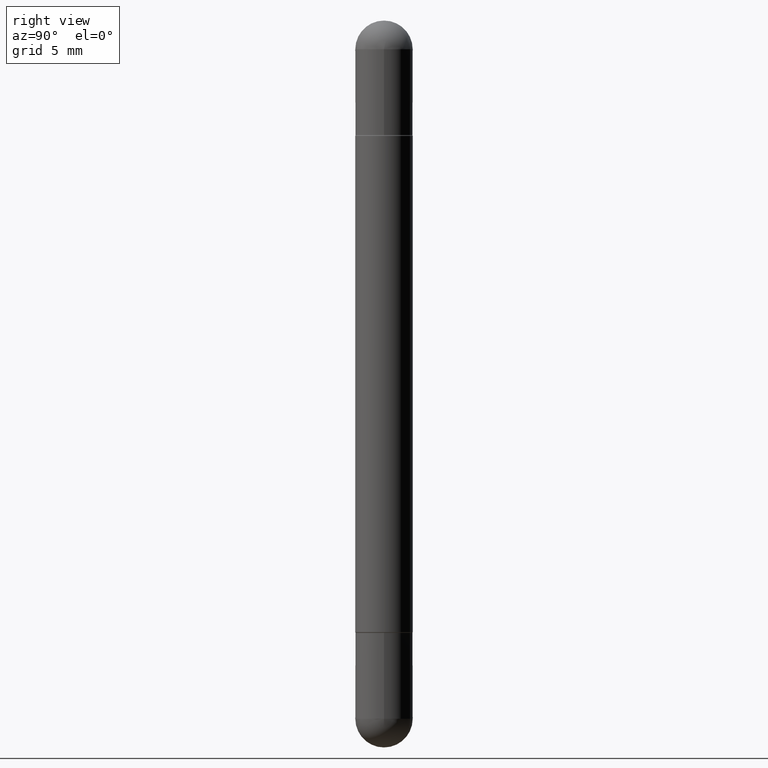
[diagram: clean part render]
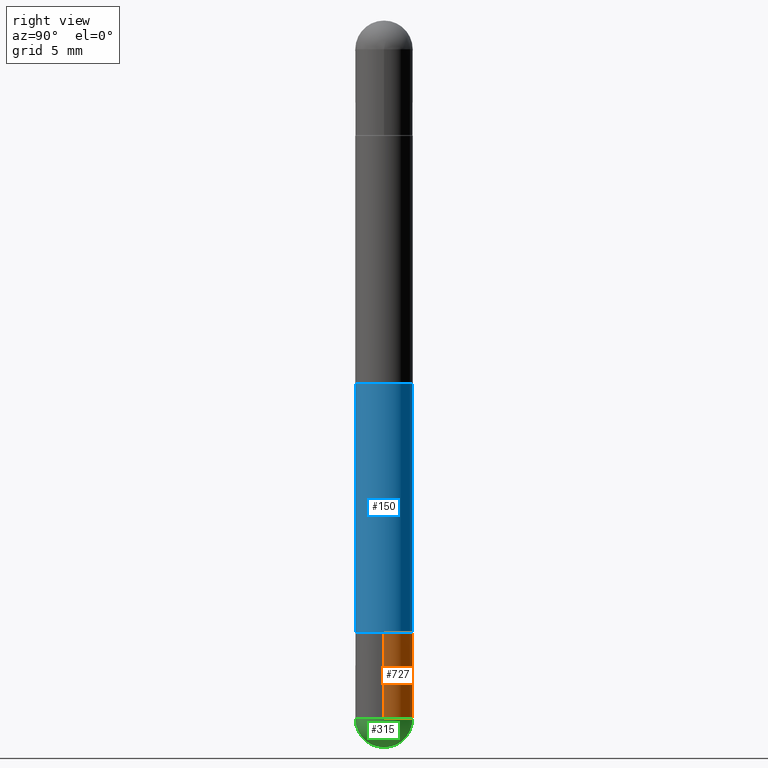
[diagram: same view with three faces highlighted in distinct colors, each labeled with its STEP entity id]
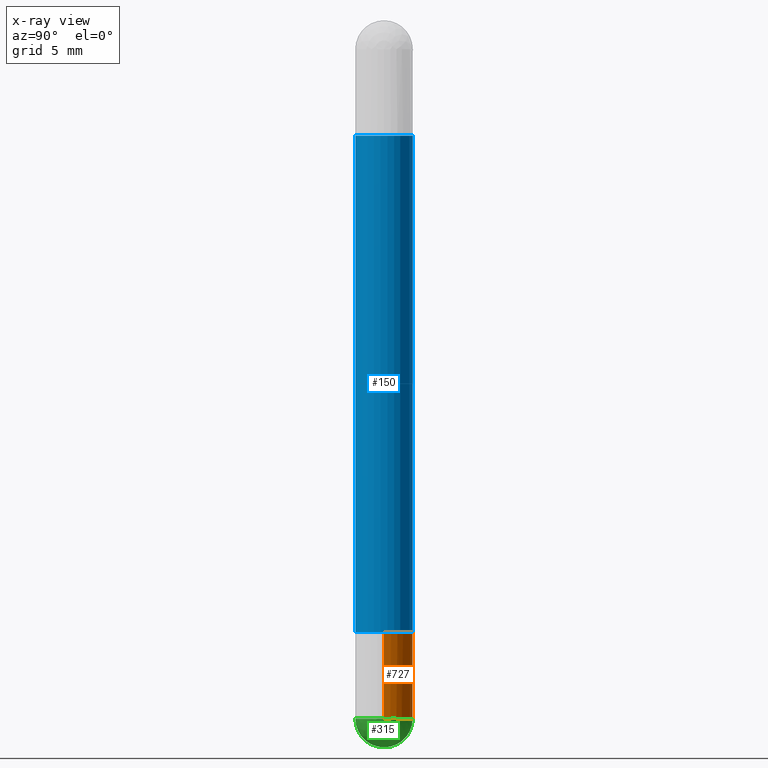
[diagram: x-ray of the same camera — body ghosted, the three highlighted faces saturated]
A machine part, right view with three faces highlighted in distinct colors.
The next image is the same camera in x-ray (body ghosted, the three faces saturated) — at least one of them is partly hidden behind the body in this view.
Their STEP definitions:

[orange] entity #727 — the highlighted cylindrical surface (edge-blend (fillet) strip) has radius 1.4999 mm, axis along (-0, 0, 1).
#76 = EDGE_CURVE ( 'NONE', #181, #323, #173, .T. ) ;
#83 = EDGE_CURVE ( 'NONE', #181, #246, #277, .T. ) ;
#84 = AXIS2_PLACEMENT_3D ( 'NONE', #748, #310, #359 ) ;
#107 = VECTOR ( 'NONE', #483, 39.37007874015748143 ) ;
#126 = EDGE_LOOP ( 'NONE', ( #201, #782, #632, #763, #146 ) ) ;
#146 = ORIENTED_EDGE ( 'NONE', *, *, #83, .T. ) ;
#153 = AXIS2_PLACEMENT_3D ( 'NONE', #493, #306, #770 ) ;
#160 = AXIS2_PLACEMENT_3D ( 'NONE', #605, #739, #685 ) ;
#173 = LINE ( 'NONE', #667, #107 ) ;
#181 = VERTEX_POINT ( 'NONE', #538 ) ;
#201 = ORIENTED_EDGE ( 'NONE', *, *, #696, .T. ) ;
#223 = DIRECTION ( 'NONE',  ( -2.445468806185136597E-29, 3.491481338843145583E-15, 1.000000000000000000 ) ) ;
#246 = VERTEX_POINT ( 'NONE', #407 ) ;
#260 = VERTEX_POINT ( 'NONE', #279 ) ;
#277 = CIRCLE ( 'NONE', #791, 0.05905000000000001914 ) ;
#279 = CARTESIAN_POINT ( 'NONE',  ( -0.05905000000000001914, -4.288599812930171320E-15, -1.259899999999999798 ) ) ;
#306 = DIRECTION ( 'NONE',  ( -2.445468806185136597E-29, 3.491481338843145583E-15, 1.000000000000000000 ) ) ;
#310 = DIRECTION ( 'NONE',  ( -2.445468806185136597E-29, 3.491481338843145583E-15, 1.000000000000000000 ) ) ;
#312 = CIRCLE ( 'NONE', #84, 0.05905000000000001914 ) ;
#323 = VERTEX_POINT ( 'NONE', #529 ) ;
#359 = DIRECTION ( 'NONE',  ( 1.000000000000000000, -6.982962677686270655E-15, 0.000000000000000000 ) ) ;
#367 = EDGE_CURVE ( 'NONE', #553, #260, #476, .T. ) ;
#403 = EDGE_CURVE ( 'NONE', #323, #260, #508, .T. ) ;
#407 = CARTESIAN_POINT ( 'NONE',  ( 4.123439461174084467E-16, 0.05904999999999487742, -1.437050000000000161 ) ) ;
#476 = LINE ( 'NONE', #552, #651 ) ;
#483 = DIRECTION ( 'NONE',  ( -2.445468806185136877E-29, 3.491481338843145188E-15, 1.000000000000000000 ) ) ;
#493 = CARTESIAN_POINT ( 'NONE',  ( 0.000000000000000000, 0.000000000000000000, 0.000000000000000000 ) ) ;
#508 = CIRCLE ( 'NONE', #160, 0.05905000000000001914 ) ;
#529 = CARTESIAN_POINT ( 'NONE',  ( 0.05905000000000001914, -4.811261284925853162E-15, -1.259899999999999798 ) ) ;
#538 = CARTESIAN_POINT ( 'NONE',  ( 0.05905000000000001914, -5.120519244513884944E-15, -1.437049999999999939 ) ) ;
#552 = CARTESIAN_POINT ( 'NONE',  ( -0.05905000000000001914, 4.195754854663392958E-16, -2.904631170795522943E-30 ) ) ;
#553 = VERTEX_POINT ( 'NONE', #600 ) ;
#593 = FACE_OUTER_BOUND ( 'NONE', #126, .T. ) ;
#600 = CARTESIAN_POINT ( 'NONE',  ( -0.05905000000000001914, -4.288599812930171320E-15, -1.437049999999999939 ) ) ;
#605 = CARTESIAN_POINT ( 'NONE',  ( 3.081046148912652946E-29, -4.398917338808479031E-15, -1.259899999999999798 ) ) ;
#632 = ORIENTED_EDGE ( 'NONE', *, *, #403, .F. ) ;
#651 = VECTOR ( 'NONE', #669, 39.37007874015748143 ) ;
#667 = CARTESIAN_POINT ( 'NONE',  ( 0.05905000000000001914, -4.123439461173741806E-16, 2.879382386107500921E-30 ) ) ;
#669 = DIRECTION ( 'NONE',  ( -2.445468806185136877E-29, 3.491481338843145188E-15, 1.000000000000000000 ) ) ;
#676 = CYLINDRICAL_SURFACE ( 'NONE', #153, 0.05905000000000001914 ) ;
#685 = DIRECTION ( 'NONE',  ( 1.000000000000000000, -6.982962677686270655E-15, 0.000000000000000000 ) ) ;
#696 = EDGE_CURVE ( 'NONE', #246, #553, #312, .T. ) ;
#727 = ADVANCED_FACE ( 'NONE', ( #593 ), #676, .T. ) ;
#739 = DIRECTION ( 'NONE',  ( -2.445468806185136597E-29, 3.491481338843145583E-15, 1.000000000000000000 ) ) ;
#748 = CARTESIAN_POINT ( 'NONE',  ( 3.514260947928350449E-29, -5.017433257984542594E-15, -1.437049999999999939 ) ) ;
#763 = ORIENTED_EDGE ( 'NONE', *, *, #76, .F. ) ;
#770 = DIRECTION ( 'NONE',  ( 1.000000000000000000, -6.982962677686266711E-15, 4.876176775795935793E-29 ) ) ;
#782 = ORIENTED_EDGE ( 'NONE', *, *, #367, .T. ) ;
#789 = CARTESIAN_POINT ( 'NONE',  ( 3.514260947928350449E-29, -5.017433257984542594E-15, -1.437049999999999939 ) ) ;
#791 = AXIS2_PLACEMENT_3D ( 'NONE', #789, #223, #803 ) ;
#803 = DIRECTION ( 'NONE',  ( 1.000000000000000000, -6.982962677686270655E-15, 0.000000000000000000 ) ) ;

[blue] entity #150 — the highlighted cylindrical surface (edge-blend (fillet) strip) has radius 1.4999 mm, axis along (-0, 0, -1).
#14 = CARTESIAN_POINT ( 'NONE',  ( 4.051124067684279981E-16, 0.05904999999999575866, -1.258900000000000352 ) ) ;
#27 = CARTESIAN_POINT ( 'NONE',  ( 0.000000000000000000, 0.000000000000000000, -1.496100000000000207 ) ) ;
#29 = ORIENTED_EDGE ( 'NONE', *, *, #263, .F. ) ;
#32 = DIRECTION ( 'NONE',  ( -6.982962677686265922E-15, -1.000000000000000000, -4.626330217890363025E-15 ) ) ;
#52 = VERTEX_POINT ( 'NONE', #14 ) ;
#56 = VECTOR ( 'NONE', #714, 39.37007874015748143 ) ;
#65 = CIRCLE ( 'NONE', #242, 0.05905000000000014404 ) ;
#115 = LINE ( 'NONE', #617, #728 ) ;
#119 = ORIENTED_EDGE ( 'NONE', *, *, #217, .T. ) ;
#145 = LINE ( 'NONE', #399, #56 ) ;
#150 = ADVANCED_FACE ( 'NONE', ( #609 ), #724, .T. ) ;
#203 = CIRCLE ( 'NONE', #662, 0.05905000000000014404 ) ;
#207 = DIRECTION ( 'NONE',  ( 2.449736537588635656E-29, -3.485369704569148359E-15, 1.000000000000000000 ) ) ;
#217 = EDGE_CURVE ( 'NONE', #431, #52, #65, .T. ) ;
#219 = DIRECTION ( 'NONE',  ( -2.449736537588635656E-29, 3.485369704569148359E-15, 1.000000000000000000 ) ) ;
#226 = DIRECTION ( 'NONE',  ( -2.449736537588635656E-29, 3.485369704569148359E-15, -1.000000000000000000 ) ) ;
#242 = AXIS2_PLACEMENT_3D ( 'NONE', #269, #219, #402 ) ;
#263 = EDGE_CURVE ( 'NONE', #700, #439, #203, .T. ) ;
#269 = CARTESIAN_POINT ( 'NONE',  ( 3.083973327170334045E-29, -4.387731921082100675E-15, -1.258900000000000130 ) ) ;
#297 = CARTESIAN_POINT ( 'NONE',  ( -4.123439461173441546E-16, -0.05905000000000452248, -0.2372000000000003272 ) ) ;
#354 = DIRECTION ( 'NONE',  ( -2.449736537588635656E-29, 3.485369704569147964E-15, -1.000000000000000000 ) ) ;
#393 = AXIS2_PLACEMENT_3D ( 'NONE', #27, #226, #32 ) ;
#399 = CARTESIAN_POINT ( 'NONE',  ( -4.123439461173745750E-16, -0.05905000000000008159, -1.496100000000000430 ) ) ;
#402 = DIRECTION ( 'NONE',  ( -6.982962677686265922E-15, -1.000000000000000000, 4.626330217890358292E-15 ) ) ;
#409 = EDGE_CURVE ( 'NONE', #439, #52, #115, .T. ) ;
#431 = VERTEX_POINT ( 'NONE', #616 ) ;
#439 = VERTEX_POINT ( 'NONE', #447 ) ;
#442 = ORIENTED_EDGE ( 'NONE', *, *, #613, .T. ) ;
#447 = CARTESIAN_POINT ( 'NONE',  ( 4.051124067684407678E-16, 0.05904999999999576560, -0.2371999999999999387 ) ) ;
#460 = DIRECTION ( 'NONE',  ( -6.982962677686265922E-15, -1.000000000000000000, -3.469747663417768719E-15 ) ) ;
#506 = EDGE_LOOP ( 'NONE', ( #523, #29, #442, #119 ) ) ;
#520 = CARTESIAN_POINT ( 'NONE',  ( 3.083973327170334045E-29, -4.387731921082100675E-15, -0.2372000000000001330 ) ) ;
#523 = ORIENTED_EDGE ( 'NONE', *, *, #409, .F. ) ;
#609 = FACE_OUTER_BOUND ( 'NONE', #506, .T. ) ;
#613 = EDGE_CURVE ( 'NONE', #700, #431, #145, .T. ) ;
#616 = CARTESIAN_POINT ( 'NONE',  ( -4.123439461173442039E-16, -0.05905000000000452942, -1.258899999999999686 ) ) ;
#617 = CARTESIAN_POINT ( 'NONE',  ( 4.051124067684094599E-16, 0.05905000000000008159, -1.496099999999999985 ) ) ;
#662 = AXIS2_PLACEMENT_3D ( 'NONE', #520, #207, #460 ) ;
#700 = VERTEX_POINT ( 'NONE', #297 ) ;
#714 = DIRECTION ( 'NONE',  ( -2.449736537588635656E-29, 3.485369704569147964E-15, -1.000000000000000000 ) ) ;
#724 = CYLINDRICAL_SURFACE ( 'NONE', #393, 0.05905000000000008159 ) ;
#728 = VECTOR ( 'NONE', #354, 39.37007874015748143 ) ;

[green] entity #315 — the highlighted spherical surface has radius 1.4999 mm.
#8 = DIRECTION ( 'NONE',  ( -2.445468806185136597E-29, 3.491481338843145583E-15, 1.000000000000000000 ) ) ;
#16 = EDGE_CURVE ( 'NONE', #68, #246, #158, .T. ) ;
#18 = DIRECTION ( 'NONE',  ( 1.000000000000000000, -6.982962677686270655E-15, 0.000000000000000000 ) ) ;
#26 = CIRCLE ( 'NONE', #666, 0.05905000000000025506 ) ;
#30 = DIRECTION ( 'NONE',  ( 6.982962677686265922E-15, 1.000000000000000000, -4.626330217890349615E-15 ) ) ;
#34 = DIRECTION ( 'NONE',  ( -1.000000000000000000, 6.982962677686265922E-15, -4.883557194083112340E-29 ) ) ;
#54 = CARTESIAN_POINT ( 'NONE',  ( -4.195754854663065087E-16, -0.05905000000000539678, -1.437049999999999716 ) ) ;
#60 = ORIENTED_EDGE ( 'NONE', *, *, #16, .T. ) ;
#68 = VERTEX_POINT ( 'NONE', #683 ) ;
#83 = EDGE_CURVE ( 'NONE', #181, #246, #277, .T. ) ;
#92 = SPHERICAL_SURFACE ( 'NONE', #692, 0.05905000000000025506 ) ;
#158 = CIRCLE ( 'NONE', #225, 0.05905000000000025506 ) ;
#181 = VERTEX_POINT ( 'NONE', #538 ) ;
#223 = DIRECTION ( 'NONE',  ( -2.445468806185136597E-29, 3.491481338843145583E-15, 1.000000000000000000 ) ) ;
#225 = AXIS2_PLACEMENT_3D ( 'NONE', #702, #577, #397 ) ;
#233 = CARTESIAN_POINT ( 'NONE',  ( 3.183141170014464762E-29, -5.491615626124592102E-15, -1.437049999999999939 ) ) ;
#246 = VERTEX_POINT ( 'NONE', #407 ) ;
#277 = CIRCLE ( 'NONE', #791, 0.05905000000000001914 ) ;
#281 = EDGE_CURVE ( 'NONE', #644, #181, #307, .T. ) ;
#307 = CIRCLE ( 'NONE', #769, 0.05905000000000001914 ) ;
#315 = ADVANCED_FACE ( 'NONE', ( #785 ), #92, .T. ) ;
#397 = DIRECTION ( 'NONE',  ( 6.982962677686266711E-15, 1.000000000000000000, 0.000000000000000000 ) ) ;
#407 = CARTESIAN_POINT ( 'NONE',  ( 4.123439461174084467E-16, 0.05904999999999487742, -1.437050000000000161 ) ) ;
#432 = ORIENTED_EDGE ( 'NONE', *, *, #281, .F. ) ;
#441 = DIRECTION ( 'NONE',  ( -1.000000000000000000, 7.105427357601001070E-15, -4.926315508542082329E-29 ) ) ;
#449 = EDGE_LOOP ( 'NONE', ( #744, #60, #535, #432 ) ) ;
#464 = CARTESIAN_POINT ( 'NONE',  ( 3.514260947928350449E-29, -5.017433257984542594E-15, -1.437049999999999939 ) ) ;
#535 = ORIENTED_EDGE ( 'NONE', *, *, #83, .F. ) ;
#538 = CARTESIAN_POINT ( 'NONE',  ( 0.05905000000000001914, -5.120519244513884944E-15, -1.437049999999999939 ) ) ;
#577 = DIRECTION ( 'NONE',  ( 1.000000000000000000, -6.982962677686265922E-15, 4.883557194083112340E-29 ) ) ;
#596 = CARTESIAN_POINT ( 'NONE',  ( 3.183141170014464762E-29, -5.491615626124592102E-15, -1.437049999999999939 ) ) ;
#636 = DIRECTION ( 'NONE',  ( -7.105427357601001070E-15, -1.000000000000000000, 0.000000000000000000 ) ) ;
#644 = VERTEX_POINT ( 'NONE', #54 ) ;
#666 = AXIS2_PLACEMENT_3D ( 'NONE', #233, #441, #636 ) ;
#683 = CARTESIAN_POINT ( 'NONE',  ( 3.330070981488499955E-29, -5.694171829508798064E-15, -1.496100000000000207 ) ) ;
#692 = AXIS2_PLACEMENT_3D ( 'NONE', #596, #34, #30 ) ;
#702 = CARTESIAN_POINT ( 'NONE',  ( 3.183141170014464762E-29, -5.491615626124592102E-15, -1.437049999999999939 ) ) ;
#744 = ORIENTED_EDGE ( 'NONE', *, *, #813, .F. ) ;
#769 = AXIS2_PLACEMENT_3D ( 'NONE', #464, #8, #18 ) ;
#785 = FACE_OUTER_BOUND ( 'NONE', #449, .T. ) ;
#789 = CARTESIAN_POINT ( 'NONE',  ( 3.514260947928350449E-29, -5.017433257984542594E-15, -1.437049999999999939 ) ) ;
#791 = AXIS2_PLACEMENT_3D ( 'NONE', #789, #223, #803 ) ;
#803 = DIRECTION ( 'NONE',  ( 1.000000000000000000, -6.982962677686270655E-15, 0.000000000000000000 ) ) ;
#813 = EDGE_CURVE ( 'NONE', #68, #644, #26, .T. ) ;